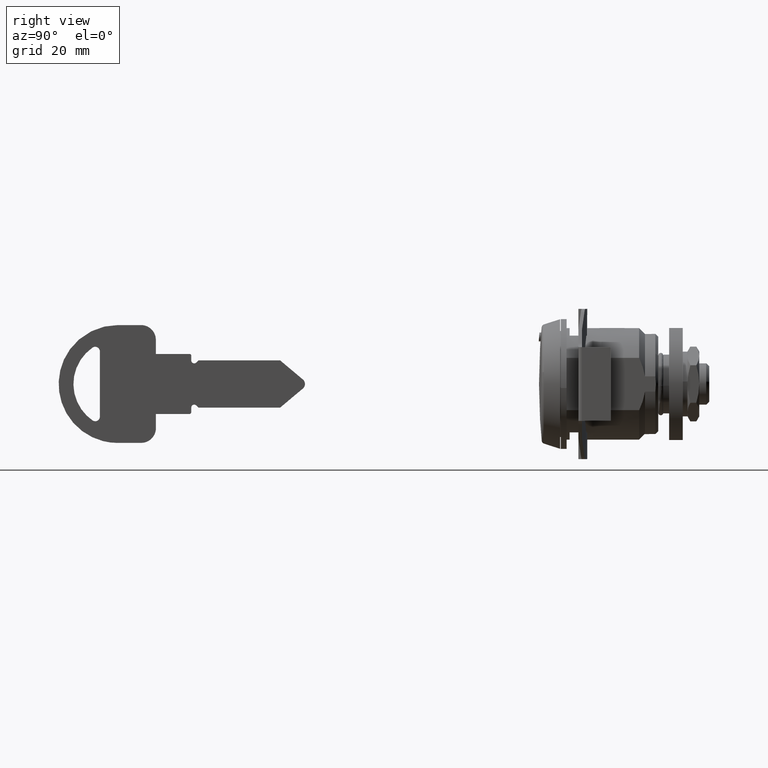
[diagram: clean part render]
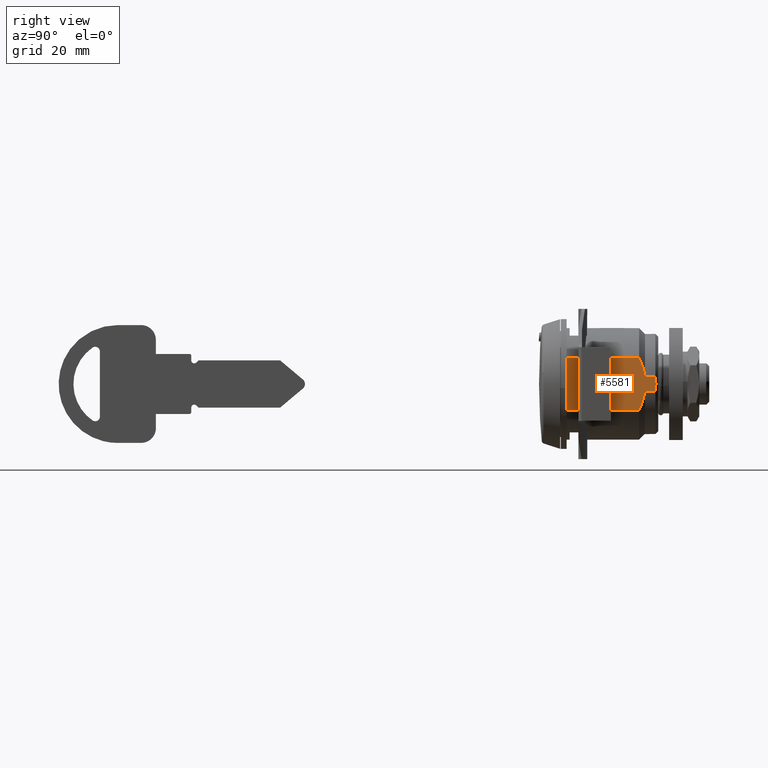
[diagram: same view with one face highlighted and labeled with its STEP entity id]
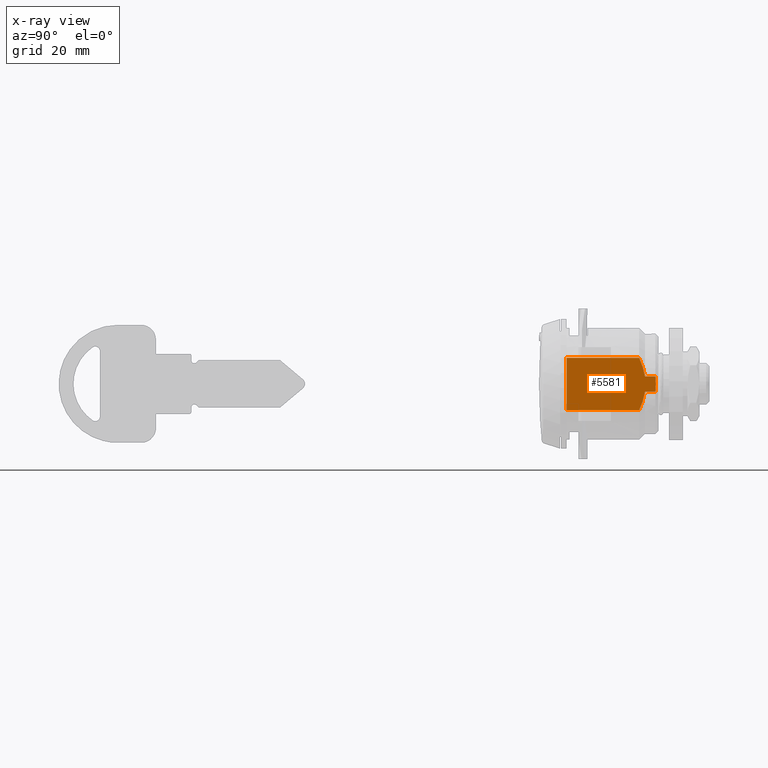
[diagram: x-ray of the same camera — body ghosted, the highlighted face saturated]
A machine part, right view. The second image highlights one B-rep face of the part: STEP entity #5581.
The next image is the same camera in x-ray: the body ghosted, the highlighted face saturated — about 0% of this face is hidden behind the body in this view.
In plain terms, the highlighted face is a freeform B-spline surface patch.
Its self-contained STEP definition (entity closure, byte-faithful):
#4175=CARTESIAN_POINT('',(19.751256000000101,-8.400000000000148,1.299999999997750));
#4176=VERTEX_POINT('',#4175);
#4190=CARTESIAN_POINT('',(19.751256000000101,-8.400000000000148,-1.299999999997750));
#4191=VERTEX_POINT('',#4190);
#4192=CARTESIAN_POINT('',(19.751256000000090,-8.400000000000148,1.299999999997751));
#4193=CARTESIAN_POINT('',(19.817347029204338,-8.400000000000148,0.867866347507695));
#4194=CARTESIAN_POINT('',(19.851173383121040,-8.400000000000148,0.435075726517367));
#4195=CARTESIAN_POINT('',(19.851297080433739,-8.400000000000148,-0.215140837012895));
#4196=CARTESIAN_POINT('',(19.842937276350089,-8.400000000000150,-0.432050752174140));
#4197=CARTESIAN_POINT('',(19.817848946498572,-8.400000000000148,-0.757671138118490));
#4198=CARTESIAN_POINT('',(19.807397100468950,-8.400000000000148,-0.866253804086032));
#4199=CARTESIAN_POINT('',(19.782351866536239,-8.400000000000148,-1.083503465478306));
#4200=CARTESIAN_POINT('',(19.767750034692849,-8.400000000000148,-1.192154388545050));
#4201=CARTESIAN_POINT('',(19.751256000000112,-8.400000000000148,-1.299999999997753));
#4202=B_SPLINE_CURVE_WITH_KNOTS('',3,(#4192,#4193,#4194,#4195,#4196,#4197,#4198,#4199,#4200,#4201),.UNSPECIFIED.,.F.,.U.,(4,2,2,2,4),(0.0,0.500000000000000,0.750000000000000,0.875000000000000,1.0),.UNSPECIFIED.);
#4203=EDGE_CURVE('',#4176,#4191,#4202,.T.);
#5509=CARTESIAN_POINT('',(3.944513299067102,-8.400000000000148,4.880632116375968));
#5510=CARTESIAN_POINT('',(3.944513299067102,-8.400000000000148,-4.880632195721818));
#5511=CARTESIAN_POINT('',(20.607997752540271,-8.400000000000148,4.880632116375968));
#5512=CARTESIAN_POINT('',(20.607997752540271,-8.400000000000148,-4.880632195721818));
#5513=B_SPLINE_SURFACE_WITH_KNOTS('',1,1,((#5509,#5511),(#5510,#5512)),.UNSPECIFIED.,.F.,.F.,.U.,(2,2),(2,2),(0.0,9.761264312097786),(0.0,16.663484453473171),.UNSPECIFIED.);
#5514=CARTESIAN_POINT('',(17.001256000000151,-8.400000000000148,4.437341546466475));
#5515=VERTEX_POINT('',#5514);
#5516=CARTESIAN_POINT('',(4.701256000000150,-8.400000000000148,4.437341546466475));
#5517=VERTEX_POINT('',#5516);
#5518=CARTESIAN_POINT('',(17.001256000000151,-8.400000000000148,4.437341546466475));
#5519=CARTESIAN_POINT('',(4.701256000000150,-8.400000000000148,4.437341546466475));
#5520=QUASI_UNIFORM_CURVE('',1,(#5518,#5519),.UNSPECIFIED.,.F.,.U.);
#5521=EDGE_CURVE('',#5515,#5517,#5520,.T.);
#5522=ORIENTED_EDGE('',*,*,#5521,.T.);
#5523=CARTESIAN_POINT('',(4.701256000000150,-8.400000000000148,-4.437341546466475));
#5524=VERTEX_POINT('',#5523);
#5525=CARTESIAN_POINT('',(4.701256000000150,-8.400000000000148,-4.437341546466475));
#5526=CARTESIAN_POINT('',(4.701256000000150,-8.400000000000148,4.437341546466475));
#5527=QUASI_UNIFORM_CURVE('',1,(#5525,#5526),.UNSPECIFIED.,.F.,.U.);
#5528=EDGE_CURVE('',#5524,#5517,#5527,.T.);
#5529=ORIENTED_EDGE('',*,*,#5528,.F.);
#5530=CARTESIAN_POINT('',(17.001256000000151,-8.400000000000148,-4.437341546466475));
#5531=VERTEX_POINT('',#5530);
#5532=CARTESIAN_POINT('',(17.001256000000151,-8.400000000000148,-4.437341546466475));
#5533=CARTESIAN_POINT('',(4.701256000000150,-8.400000000000148,-4.437341546466475));
#5534=QUASI_UNIFORM_CURVE('',1,(#5532,#5533),.UNSPECIFIED.,.F.,.U.);
#5535=EDGE_CURVE('',#5531,#5524,#5534,.T.);
#5536=ORIENTED_EDGE('',*,*,#5535,.F.);
#5537=CARTESIAN_POINT('',(18.001256000000101,-8.400000000000148,-1.299999999997750));
#5538=VERTEX_POINT('',#5537);
#5539=CARTESIAN_POINT('',(18.001256000000101,-8.400000000000148,-1.299999999997750));
#5540=CARTESIAN_POINT('',(17.950899793295019,-8.400000000000148,-1.629234425564295));
#5541=CARTESIAN_POINT('',(17.882526742040451,-8.400000000000151,-1.954113575777129));
#5542=CARTESIAN_POINT('',(17.701924665431349,-8.400000000000148,-2.644911618678313));
#5543=CARTESIAN_POINT('',(17.584655310438460,-8.400000000000148,-3.009612109136660));
#5544=CARTESIAN_POINT('',(17.383249689112581,-8.400000000000148,-3.550498328822954));
#5545=CARTESIAN_POINT('',(17.311859755677670,-8.400000000000148,-3.729765237565275));
#5546=CARTESIAN_POINT('',(17.161402055063341,-8.400000000000148,-4.086443087201166));
#5547=CARTESIAN_POINT('',(17.082772896074349,-8.400000000000148,-4.262820269572226));
#5548=CARTESIAN_POINT('',(17.001256000000129,-8.400000000000148,-4.437341546466465));
#5549=B_SPLINE_CURVE_WITH_KNOTS('',3,(#5539,#5540,#5541,#5542,#5543,#5544,#5545,#5546,#5547,#5548),.UNSPECIFIED.,.F.,.U.,(4,2,2,2,4),(0.641423269057968,0.750000000000000,0.875000000000000,0.937500000000000,1.0),.UNSPECIFIED.);
#5550=EDGE_CURVE('',#5538,#5531,#5549,.T.);
#5551=ORIENTED_EDGE('',*,*,#5550,.F.);
#5552=CARTESIAN_POINT('',(19.751256000000101,-8.400000000000148,-1.299999999997750));
#5553=CARTESIAN_POINT('',(18.001256000000101,-8.400000000000148,-1.299999999997750));
#5554=QUASI_UNIFORM_CURVE('',1,(#5552,#5553),.UNSPECIFIED.,.F.,.U.);
#5555=EDGE_CURVE('',#4191,#5538,#5554,.T.);
#5556=ORIENTED_EDGE('',*,*,#5555,.F.);
#5557=ORIENTED_EDGE('',*,*,#4203,.F.);
#5558=CARTESIAN_POINT('',(18.001256000000101,-8.400000000000148,1.299999999997750));
#5559=VERTEX_POINT('',#5558);
#5560=CARTESIAN_POINT('',(18.001256000000101,-8.400000000000148,1.299999999997750));
#5561=CARTESIAN_POINT('',(19.751256000000101,-8.400000000000148,1.299999999997750));
#5562=QUASI_UNIFORM_CURVE('',1,(#5560,#5561),.UNSPECIFIED.,.F.,.U.);
#5563=EDGE_CURVE('',#5559,#4176,#5562,.T.);
#5564=ORIENTED_EDGE('',*,*,#5563,.F.);
#5565=CARTESIAN_POINT('',(17.001256000000151,-8.400000000000148,4.437341546466475));
#5566=CARTESIAN_POINT('',(17.163104845268261,-8.400000000000148,4.090836273480227));
#5567=CARTESIAN_POINT('',(17.313456497851771,-8.400000000000148,3.737480898169443));
#5568=CARTESIAN_POINT('',(17.482359384390492,-8.400000000000148,3.284444501514008));
#5569=CARTESIAN_POINT('',(17.515200471603759,-8.400000000000150,3.193202702762590));
#5570=CARTESIAN_POINT('',(17.578464931297109,-8.400000000000148,3.010573294508382));
#5571=CARTESIAN_POINT('',(17.669875991830981,-8.400000000000150,2.736046968186948));
#5572=CARTESIAN_POINT('',(17.750361278898179,-8.400000000000148,2.459695680687008));
#5573=CARTESIAN_POINT('',(17.882925954715429,-8.400000000000150,1.952506120613162));
#5574=CARTESIAN_POINT('',(17.951121813224368,-8.400000000000148,1.627761504985939));
#5575=CARTESIAN_POINT('',(18.001256000000101,-8.400000000000148,1.299999999997750));
#5576=B_SPLINE_CURVE_WITH_KNOTS('',3,(#5565,#5566,#5567,#5568,#5569,#5570,#5571,#5572,#5573,#5574,#5575),.UNSPECIFIED.,.F.,.U.,(4,2,2,1,2,4),(0.0,0.125000000000000,0.156250000000000,0.187500000000000,0.250000000000000,0.358741394237841),.UNSPECIFIED.);
#5577=EDGE_CURVE('',#5515,#5559,#5576,.T.);
#5578=ORIENTED_EDGE('',*,*,#5577,.F.);
#5579=EDGE_LOOP('',(#5522,#5529,#5536,#5551,#5556,#5557,#5564,#5578));
#5580=FACE_OUTER_BOUND('',#5579,.T.);
#5581=ADVANCED_FACE('',(#5580),#5513,.T.);